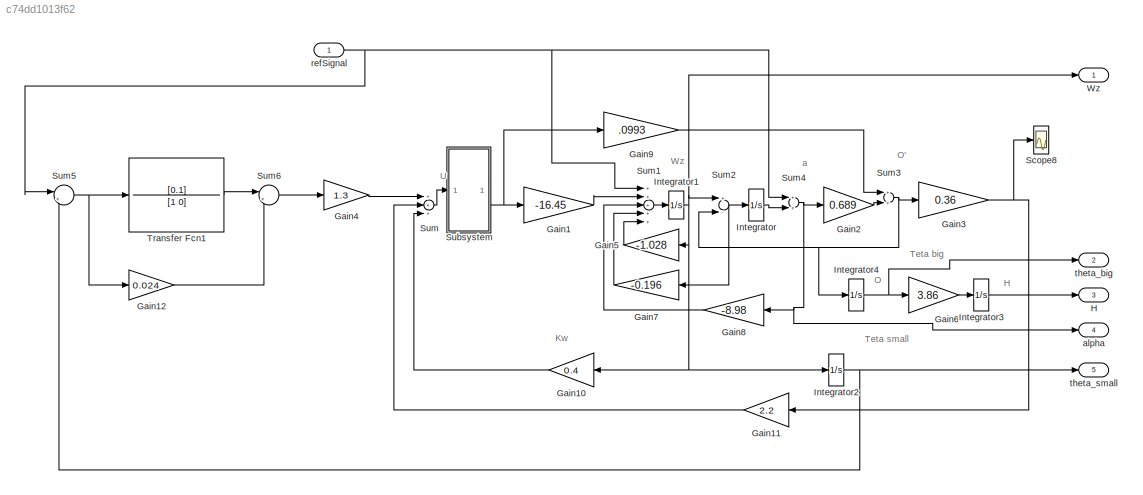
MODEL slx_c74dd1013f62
KIND model
CONFIG AbsTol = 1e-6
CONFIG FixedStep = 0.1
CONFIG MaxStep = auto
CONFIG MinStep = auto
CONFIG RelTol = 1e-3
CONFIG SampleTimeConstraint = Unconstrained
CONFIG Solver = FixedStepAuto
CONFIG SolverMode = SingleTasking
CONFIG SolverName = FixedStepAuto
CONFIG StartTime = 0.0
CONFIG StopTime = 60
BLOCK [Gain] Gain1
  Gain = -16.45
BLOCK [Gain] Gain10
  Gain = 0.4
BLOCK [Gain] Gain11
  Gain = 2.2
BLOCK [Gain] Gain12
  Gain = 0.024
BLOCK [Gain] Gain2
  Gain = 0.689
BLOCK [Gain] Gain3
  Gain = 0.36
BLOCK [Gain] Gain4
  Gain = 1.3
BLOCK [Gain] Gain5
  Gain = -1.028
BLOCK [Gain] Gain6
  Gain = 3.86
BLOCK [Gain] Gain7
  Gain = -0.196
BLOCK [Gain] Gain8
  Gain = -8.98
BLOCK [Gain] Gain9
  Gain = .0993
BLOCK [Outport] H
  IconDisplay = Port number
  Port = 3
BLOCK [Integrator] Integrator
  Ports = [1, 1]
BLOCK [Integrator] Integrator1
  Ports = [1, 1]
BLOCK [Integrator] Integrator2
  Ports = [1, 1]
BLOCK [Integrator] Integrator3
  Ports = [1, 1]
BLOCK [Integrator] Integrator4
  Ports = [1, 1]
BLOCK [Scope] Scope8
  Ports = [1]
  ScopeSpecificationString = Simulink.scopes.TimeScopeBlockCfg('CurrentConfiguration', extmgr.ConfigurationSet(extmgr.Configuration('Core','General UI',true,'FigureColor',[1 1 1]),extmgr.Configuration('Core','Source UI',true),extmgr.Configuration('Sources','WiredSimulink',true,'DataLoggingVariableName','ScopeData8','DataLoggingSaveFormat','Array','DataLoggingLimitDataPoints',true,'DataLoggingDecimation','1','DataLoggingDecima...<+2001ch>
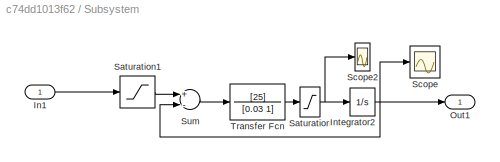
BLOCK [SubSystem] Subsystem
  Ports = [1, 1]
  RequestExecContextInheritance = off
  Variant = off
BLOCK [Inport] Subsystem/In1
  IconDisplay = Port number
BLOCK [Integrator] Subsystem/Integrator2
  LimitOutput = on
  LowerSaturationLimit = -25
  Ports = [1, 1]
  UpperSaturationLimit = 20
BLOCK [Outport] Subsystem/Out1
  IconDisplay = Port number
  InitialOutput = 0
BLOCK [Saturate] Subsystem/Saturation
  InputPortMap = u0
  LowerLimit = -25
  Ports = [1, 1]
  UpperLimit = 25
BLOCK [Saturate] Subsystem/Saturation1
  InputPortMap = u0
  LowerLimit = -25
  Ports = [1, 1]
  UpperLimit = 20
BLOCK [Scope] Subsystem/Scope
  Ports = [1]
  ScopeSpecificationString = Simulink.scopes.TimeScopeBlockCfg('CurrentConfiguration', extmgr.ConfigurationSet(extmgr.Configuration('Core','General UI',true),extmgr.Configuration('Core','Source UI',true),extmgr.Configuration('Sources','WiredSimulink',true,'DataLoggingVariableName','ScopeData9','DataLoggingSaveFormat','StructureWithTime','DataLoggingLimitDataPoints',true,'DataLoggingDecimation','1','DataLoggingDecimateData',tr...<+927ch>
BLOCK [Scope] Subsystem/Scope2
  Ports = [1]
  ScopeSpecificationString = Simulink.scopes.TimeScopeBlockCfg('CurrentConfiguration', extmgr.ConfigurationSet(extmgr.Configuration('Core','General UI',true),extmgr.Configuration('Core','Source UI',true),extmgr.Configuration('Sources','WiredSimulink',true,'DataLoggingVariableName','ScopeData7','DataLoggingSaveFormat','Array','DataLoggingLimitDataPoints',true,'DataLoggingDecimation','1','DataLoggingDecimateData',true),extmgr.C...<+1690ch>
BLOCK [Sum] Subsystem/Sum
  Inputs = +-
  Ports = [2, 1]
BLOCK [TransferFcn] Subsystem/Transfer Fcn
  Denominator = [0.03 1]
  Numerator = [25]
BLOCK [Sum] Sum
  Inputs = +++
  Ports = [3, 1]
BLOCK [Sum] Sum1
  Inputs = +++++
  Ports = [5, 1]
BLOCK [Sum] Sum2
  Inputs = +-
  Ports = [2, 1]
BLOCK [Sum] Sum3
  Ports = [2, 1]
BLOCK [Sum] Sum4
  Ports = [2, 1]
BLOCK [Sum] Sum5
  IconShape = round
  InputSameDT = off
  Inputs = |++
  OutDataTypeStr = Inherit: Inherit via internal rule
  Ports = [2, 1]
BLOCK [Sum] Sum6
  IconShape = round
  InputSameDT = off
  Inputs = |++
  OutDataTypeStr = Inherit: Inherit via internal rule
  Ports = [2, 1]
BLOCK [TransferFcn] Transfer Fcn1
  Denominator = [1 0]
  Numerator = [0.1]
BLOCK [Outport] Wz
  IconDisplay = Port number
BLOCK [Outport] alpha
  IconDisplay = Port number
  Port = 4
BLOCK [Inport] refSignal
  IconDisplay = Port number
BLOCK [Outport] theta_big
  IconDisplay = Port number
  Port = 2
BLOCK [Outport] theta_small 
  IconDisplay = Port number
  Port = 5
ANNOTATION (root): H
ANNOTATION (root): Kw
ANNOTATION (root): O
ANNOTATION (root): O'
ANNOTATION (root): Teta big
ANNOTATION (root): Teta small
ANNOTATION (root): U
ANNOTATION (root): Wz
ANNOTATION (root): a
LINE Gain10:1 -> Sum:3
LINE Gain11:1 -> Sum:2
LINE Gain12:1 -> Sum6:2
LINE Gain1:1 -> Sum1:2
LINE Gain2:1 -> Sum3:2
NET Gain3:1 -> Gain11:1, Scope8:1
LINE Gain4:1 -> Sum:1
LINE Gain5:1 -> Sum1:5
LINE Gain6:1 -> Integrator3:1
LINE Gain7:1 -> Sum1:4
LINE Gain8:1 -> Sum1:3
LINE Gain9:1 -> Sum3:1
NET Integrator1:1 -> Gain10:1, Gain5:1, Integrator2:1, Sum2:1, Wz:1
NET Integrator2:1 -> Sum5:2, theta_small :1
LINE Integrator3:1 -> H:1
NET Integrator4:1 -> Gain6:1, theta_big:1
LINE Integrator:1 -> Sum4:2
LINE Subsystem/In1:1 -> Subsystem/Saturation1:1
NET Subsystem/Integrator2:1 -> Subsystem/Out1:1, Subsystem/Scope:1, Subsystem/Sum:2
LINE Subsystem/Saturation1:1 -> Subsystem/Sum:1
NET Subsystem/Saturation:1 -> Subsystem/Integrator2:1, Subsystem/Scope2:1
LINE Subsystem/Sum:1 -> Subsystem/Transfer Fcn:1
LINE Subsystem/Transfer Fcn:1 -> Subsystem/Saturation:1
NET Subsystem:1 -> Gain1:1, Gain9:1
LINE Sum1:1 -> Integrator1:1
NET Sum2:1 -> Gain7:1, Integrator:1
NET Sum3:1 -> Gain3:1, Integrator4:1, Sum2:2
NET Sum4:1 -> Gain2:1, Gain8:1, alpha:1
NET Sum5:1 -> Gain12:1, Transfer Fcn1:1
LINE Sum6:1 -> Gain4:1
LINE Sum:1 -> Subsystem:1
LINE Transfer Fcn1:1 -> Sum6:1
NET refSignal:1 -> Sum1:1, Sum4:1, Sum5:1
note: NET lines group one-source signal fan-out (src -> all destinations, sorted); 1:1 wires keep LINE
